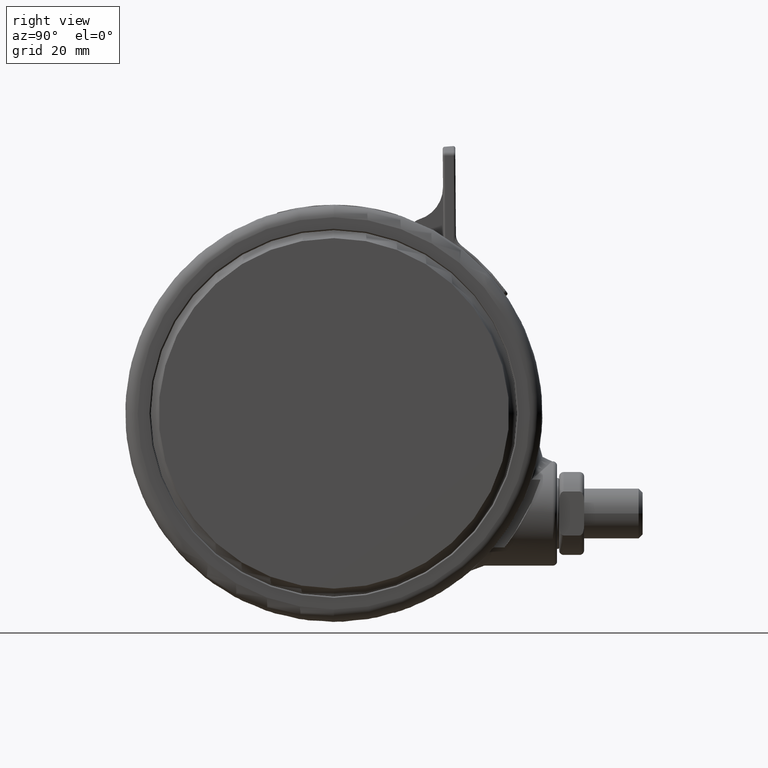
[diagram: clean part render]
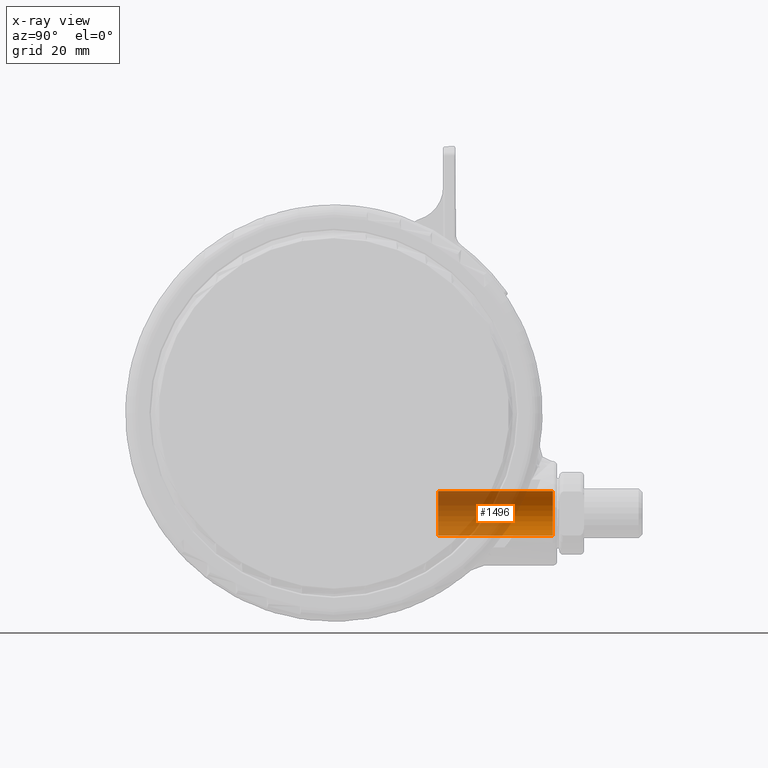
[diagram: x-ray — body ghosted, one internal face saturated and labeled with its STEP entity id]
A machine part, right view, then the same camera in x-ray: the body is ghosted and one INTERNAL B-rep face — a face not visible from any outside direction — is saturated and labeled: STEP entity #1496.
In plain terms, the highlighted cylindrical surface (edge-blend (fillet) strip) has radius 5.35 mm, axis along (0, 1, 0).
Its self-contained STEP definition (entity closure, byte-faithful):
#1496 = ADVANCED_FACE ( 'NONE', ( #23592 ), #12381, .F. ) ;
#2778 = CARTESIAN_POINT ( 'NONE',  ( -23.99999999999999600, -25.00000000000000700, -24.29999999999995100 ) ) ;
#3229 = DIRECTION ( 'NONE',  ( 2.360897160001558300E-016, -1.000000000000000000, 6.688773330916236600E-017 ) ) ;
#3677 = EDGE_CURVE ( 'NONE', #17844, #19416, #19227, .T. ) ;
#6160 = LINE ( 'NONE', #33939, #25061 ) ;
#6593 = DIRECTION ( 'NONE',  ( 1.000000000000000000, 0.0000000000000000000, 0.0000000000000000000 ) ) ;
#9144 = CARTESIAN_POINT ( 'NONE',  ( -18.64999999999999100, -61.36639215513579900, -24.29999999999995100 ) ) ;
#9349 = AXIS2_PLACEMENT_3D ( 'NONE', #2778, #29198, #6593 ) ;
#10674 = CARTESIAN_POINT ( 'NONE',  ( -23.99999999999999300, -61.36639215513579900, -24.29999999999995100 ) ) ;
#11341 = DIRECTION ( 'NONE',  ( 2.360897160001558300E-016, -1.000000000000000000, 6.688773330916236600E-017 ) ) ;
#11507 = CARTESIAN_POINT ( 'NONE',  ( -23.99999999999999300, -52.50000000000000700, -24.29999999999995100 ) ) ;
#12381 = CYLINDRICAL_SURFACE ( 'NONE', #26509, 5.350000000000000500 ) ;
#12621 = ORIENTED_EDGE ( 'NONE', *, *, #45044, .F. ) ;
#12799 = CARTESIAN_POINT ( 'NONE',  ( -29.34999999999999400, -52.50000000000000700, -24.29999999999995500 ) ) ;
#15267 = DIRECTION ( 'NONE',  ( 1.000000000000000000, 0.0000000000000000000, 0.0000000000000000000 ) ) ;
#16046 = ORIENTED_EDGE ( 'NONE', *, *, #29770, .F. ) ;
#17844 = VERTEX_POINT ( 'NONE', #12799 ) ;
#19227 = CIRCLE ( 'NONE', #41716, 5.350000000000000500 ) ;
#19416 = VERTEX_POINT ( 'NONE', #37069 ) ;
#21484 = ORIENTED_EDGE ( 'NONE', *, *, #43754, .T. ) ;
#23592 = FACE_OUTER_BOUND ( 'NONE', #44864, .T. ) ;
#25061 = VECTOR ( 'NONE', #11341, 1000.000000000000000 ) ;
#26206 = VERTEX_POINT ( 'NONE', #39925 ) ;
#26509 = AXIS2_PLACEMENT_3D ( 'NONE', #10674, #3229, #48409 ) ;
#29198 = DIRECTION ( 'NONE',  ( 2.360897160001558300E-016, -1.000000000000000000, 6.688773330916236600E-017 ) ) ;
#29770 = EDGE_CURVE ( 'NONE', #26206, #19416, #37872, .T. ) ;
#31744 = DIRECTION ( 'NONE',  ( 2.360897160001558300E-016, -1.000000000000000000, 6.688773330916236600E-017 ) ) ;
#33939 = CARTESIAN_POINT ( 'NONE',  ( -29.34999999999999400, -61.36639215513579900, -24.29999999999995100 ) ) ;
#37069 = CARTESIAN_POINT ( 'NONE',  ( -18.64999999999999100, -52.50000000000000700, -24.29999999999995100 ) ) ;
#37859 = DIRECTION ( 'NONE',  ( 2.360897160001558300E-016, -1.000000000000000000, 6.688773330916236600E-017 ) ) ;
#37872 = LINE ( 'NONE', #9144, #47907 ) ;
#39201 = ORIENTED_EDGE ( 'NONE', *, *, #3677, .T. ) ;
#39735 = CARTESIAN_POINT ( 'NONE',  ( -29.34999999999999100, -25.00000000000000700, -24.29999999999995100 ) ) ;
#39925 = CARTESIAN_POINT ( 'NONE',  ( -18.65000000000000200, -25.00000000000000700, -24.29999999999995100 ) ) ;
#41716 = AXIS2_PLACEMENT_3D ( 'NONE', #11507, #37859, #15267 ) ;
#42006 = CIRCLE ( 'NONE', #9349, 5.350000000000000500 ) ;
#43754 = EDGE_CURVE ( 'NONE', #44946, #17844, #6160, .T. ) ;
#44864 = EDGE_LOOP ( 'NONE', ( #12621, #21484, #39201, #16046 ) ) ;
#44946 = VERTEX_POINT ( 'NONE', #39735 ) ;
#45044 = EDGE_CURVE ( 'NONE', #44946, #26206, #42006, .T. ) ;
#47907 = VECTOR ( 'NONE', #31744, 1000.000000000000000 ) ;
#48409 = DIRECTION ( 'NONE',  ( 1.000000000000000000, 0.0000000000000000000, 0.0000000000000000000 ) ) ;